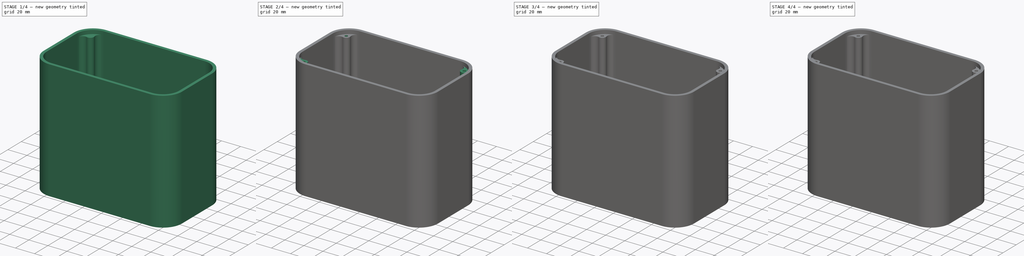
[diagram: build sequence overview — one tinted view per stage of 4, left to right]
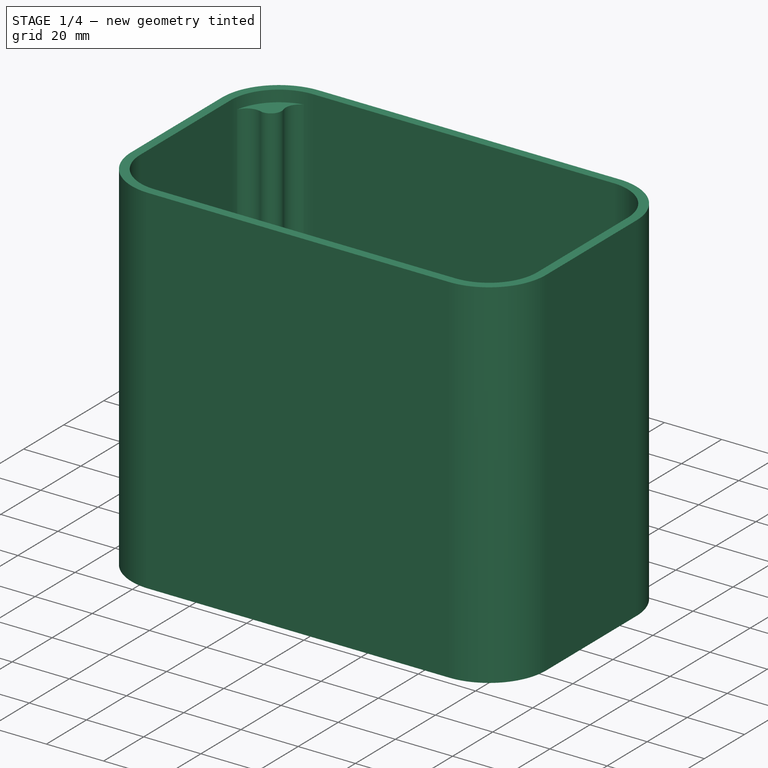
[diagram: stage 1 of 4 — iso view after this stage's code; geometry added in this stage tinted green]
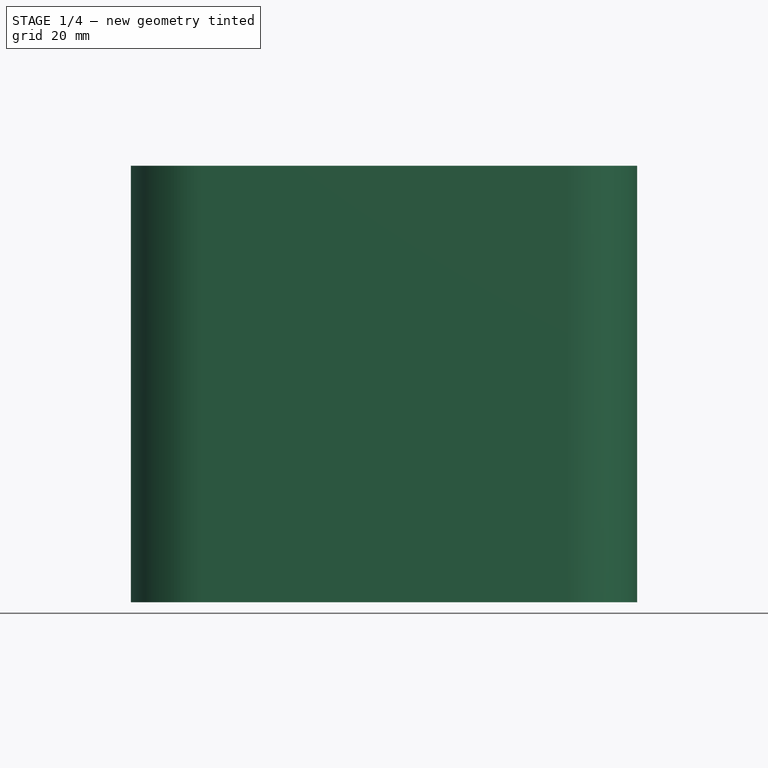
[diagram: stage 1 of 4 — front view after this stage's code; geometry added in this stage tinted green]
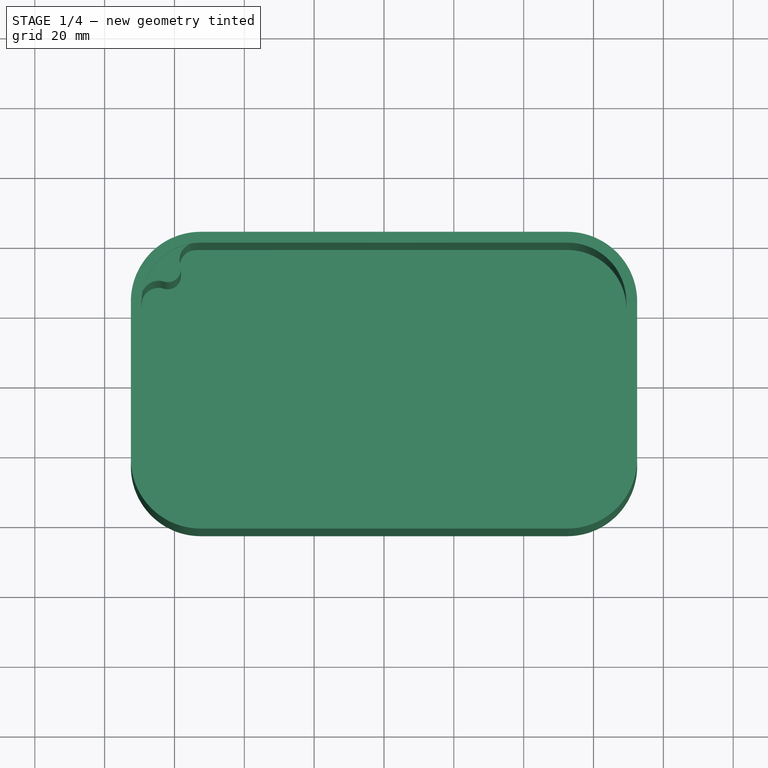
[diagram: stage 1 of 4 — top view after this stage's code; geometry added in this stage tinted green]
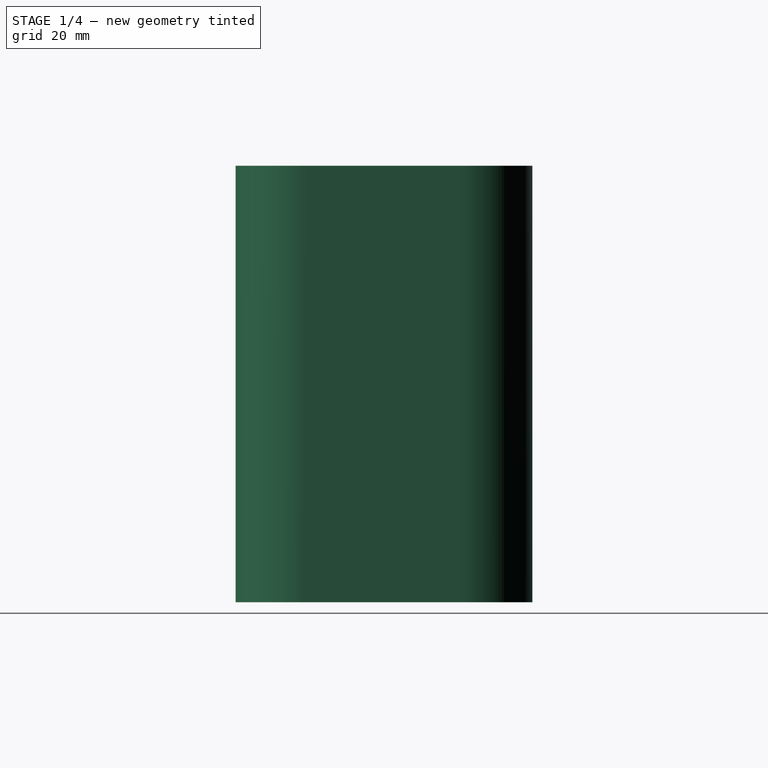
[diagram: stage 1 of 4 — right view after this stage's code; geometry added in this stage tinted green]
FCSTD DOCUMENT  (FreeCAD 0.19R23756 (Git))
Label: PID Case Improved
License: All rights reserved
LicenseURL: http://en.wikipedia.org/wiki/All_rights_reserved
objects: Sketcher::SketchObject×10, PartDesign::Pocket×6, PartDesign::Pad×4, PartDesign::Mirrored×2, Spreadsheet::Sheet×1, PartDesign::MultiTransform×1, PartDesign::Body×1
note: 34 computed .brp shape members not serialized (recipe doc carries the construction recipe); baked Part::Feature solids carry a one-line shape summary decoded from their .brp

FEATURE [Spreadsheet::Sheet] Spreadsheet  label="parameters"
  cells = A1=Common; B2=width; C2(width)=145; B3=height; C3(height)=85; B4=length; C4(length)=125; B5=outside_radius; C5(outside_radius)=20; B6=screw_size; C6(screw_size)=3; A8=Case; B9=wall_thick; C9(wall_thick)=3.1; B10=face_thick; C10(face_thick)=4; B11=inside_radius; C11(inside_radius)==C5 - C9; D11=Calculated; B12=inside_width; C12(inside_width)==C2 - 2 * C9; D12=Calculated; B13=inside_height; C13(inside_height)==C3 - 2 * C9; D13=Calculated; B14=inside_length; C14(inside_length)==C4 - C10 - C42; D14=Calculated; B15=hole_diameter; C15(hole_diameter)=3; B16=lug_diameter; C16(lug_diameter)==C15 + 2.25 * 2; D16=Calculated; A18=Case Features; B19=sw_pos_width; C19(sw_pos_width)=44; B20=sw_pos_height; C20(sw_pos_height)=18; B21=switch clearance; C21=0.2; B22=sw_diameter; C22(sw_diameter)==12 + C21; D22=Calculated; B24=therm_pos_width; C24(therm_pos_width)=38; B25=therm_pos_height; C25(therm_pos_height)=18; B26=therm clearance; C26=0.2; B27=therm_width; C27(therm_width)==17.3 + C26; D27=Calculated; B28=therm_height; C28(therm_height)==8.199999999999999 + C26; D28=Calculated; B29=therm_flange; C29(therm_flange)=2; B30=therm_depth; C30(therm_depth)=5; B31=therm_hole_size; C31(therm_hole_size)==2 + C26; D31=Calculated; B32=therm_hole_offset; C32=8; D32=???; B34=pid clearance; C34=0.2; B35=pid_body_width; C35(pid_body_width)==45 + C34; D35=Calculated; B36=pid_body_height; C36(pid_body_height)==45 + C34; D36=Calculated; B37=pid_flange_width; C37(pid_flange_width)==48.2 + C34; D37=Calculated; B38=pid_flange_height; C38(pid_flange_height)==48 + C34; D38=Calculated; B39=pid_flange_depth; C39(pid_flange_depth)=8; A41=Cover; B42=cover_thick; C42(cover_thick)=4; A44=Rear Features
FEATURE [Sketcher::SketchObject] Sketch  label="Face"
  FullyConstrained = true
  MapMode = 5
  Support = -> [XY_Plane001]
  expr: Constraints[12] = <<parameters>>.outside_radius
  expr: Constraints[17] = <<parameters>>.height
  expr: Constraints[18] = <<parameters>>.width
  sketch-geometry (8):
    g0: LineSegment StartX=-52.5 StartY=42.5 StartZ=0 EndX=52.5 EndY=42.5 EndZ=0
    g1: LineSegment StartX=72.5 StartY=22.5 StartZ=0 EndX=72.5 EndY=-22.5 EndZ=0
    g2: LineSegment StartX=52.5 StartY=-42.5 StartZ=0 EndX=-52.5 EndY=-42.5 EndZ=0
    g3: LineSegment StartX=-72.5 StartY=-22.5 StartZ=0 EndX=-72.5 EndY=22.5 EndZ=0
    g4: ArcOfCircle CenterX=-52.5 CenterY=22.5 CenterZ=0 NormalX=0 NormalY=0 NormalZ=1 AngleXU=0 Radius=20 StartAngle=1.5708 EndAngle=3.14159
    g5: ArcOfCircle CenterX=-52.5 CenterY=-22.5 CenterZ=0 NormalX=0 NormalY=0 NormalZ=1 AngleXU=0 Radius=20 StartAngle=3.14159 EndAngle=4.71239
    g6: ArcOfCircle CenterX=52.5 CenterY=-22.5 CenterZ=0 NormalX=0 NormalY=0 NormalZ=1 AngleXU=0 Radius=20 StartAngle=4.71239 EndAngle=6.28319
    g7: ArcOfCircle CenterX=52.5 CenterY=22.5 CenterZ=0 NormalX=0 NormalY=0 NormalZ=1 AngleXU=0 Radius=20 StartAngle=0 EndAngle=1.5708
  constraints (19):
    c: Horizontal(g0)
    c: Horizontal(g2)
    c: Vertical(g1)
    c: Vertical(g3)
    c: Tangent(g0,g4) = 1.5708
    c: Tangent(g3,g4) = 1.5708
    c: Tangent(g3,g5) = 1.5708
    c: Tangent(g2,g5) = 1.5708
    c: Tangent(g2,g6) = 1.5708
    c: Tangent(g1,g6) = 1.5708
    c: Tangent(g0,g7) = 1.5708
    c: Tangent(g1,g7) = 1.5708
    c: Radius(g4) = 20
    c: Symmetric(g4,g6,g-1)
    c: Equal(g7,g4)
    c: Equal(g4,g5)
    c: Equal(g5,g6)
    c: DistanceY(g2,g0) = 85
    c: DistanceX(g3,g1) = 145
FEATURE [PartDesign::Pad] Pad
  Direction = (1,1,1)
  Length = 125
  Length2 = 100
  Profile = -> Sketch
  Type = 0
  expr: Length = <<parameters>>.length
FEATURE [Sketcher::SketchObject] Sketch001  label="Cavity"
  AttachmentOffset = pos=(0,0,4) rot=(0,0,1;0rad)
  FullyConstrained = true
  MapMode = 5
  Placement = pos=(0,0,4) rot=(0,0,1;0rad)
  Support = -> [XY_Plane001]
  expr: Constraints[15] = <<parameters>>.inside_radius
  expr: Constraints[16] = <<parameters>>.inside_height
  expr: Constraints[17] = <<parameters>>.inside_width
  expr: .AttachmentOffset.Base.z = <<parameters>>.face_thick
  sketch-geometry (8):
    g0: LineSegment StartX=-52.5 StartY=39.4 StartZ=0 EndX=52.5 EndY=39.4 EndZ=0
    g1: LineSegment StartX=69.4 StartY=22.5 StartZ=0 EndX=69.4 EndY=-22.5 EndZ=0
    g2: LineSegment StartX=52.5 StartY=-39.4 StartZ=0 EndX=-52.5 EndY=-39.4 EndZ=0
    g3: LineSegment StartX=-69.4 StartY=-22.5 StartZ=0 EndX=-69.4 EndY=22.5 EndZ=0
    g4: ArcOfCircle CenterX=-52.5 CenterY=22.5 CenterZ=0 NormalX=0 NormalY=0 NormalZ=1 AngleXU=0 Radius=16.9 StartAngle=1.5708 EndAngle=3.14159
    g5: ArcOfCircle CenterX=52.5 CenterY=22.5 CenterZ=0 NormalX=0 NormalY=0 NormalZ=1 AngleXU=0 Radius=16.9 StartAngle=-1.8e-15 EndAngle=1.5708
    g6: ArcOfCircle CenterX=52.5 CenterY=-22.5 CenterZ=0 NormalX=0 NormalY=0 NormalZ=1 AngleXU=0 Radius=16.9 StartAngle=4.71239 EndAngle=6.28319
    g7: ArcOfCircle CenterX=-52.5 CenterY=-22.5 CenterZ=0 NormalX=0 NormalY=0 NormalZ=1 AngleXU=0 Radius=16.9 StartAngle=3.14159 EndAngle=4.71239
  constraints (19):
    c: Horizontal(g0)
    c: Horizontal(g2)
    c: Vertical(g1)
    c: Vertical(g3)
    c: Tangent(g3,g4) = 1.5708
    c: Tangent(g0,g4) = 1.5708
    c: Tangent(g0,g5) = 1.5708
    c: Tangent(g1,g5) = 1.5708
    c: Tangent(g1,g6) = 1.5708
    c: Tangent(g2,g6) = 1.5708
    c: Tangent(g3,g7) = 1.5708
    c: Tangent(g2,g7) = 1.5708
    c: Equal(g4,g5)
    c: Equal(g5,g6)
    c: Equal(g6,g7)
    c: Radius(g4) = 16.9
    c: DistanceY(g2,g0) = 78.8
    c: DistanceX(g3,g1) = 138.8
    c: Symmetric(g4,g6,g-1)
FEATURE [PartDesign::Pocket] Pocket
  BaseFeature = -> Pad
  Length = 117
  Length2 = 100
  Profile = -> Sketch001
  Reversed = true
  Type = 1
  expr: Length = <<parameters>>.inside_length
FEATURE [Sketcher::SketchObject] Sketch002  label="Lug"
  AttachmentOffset = pos=(0,0,4) rot=(0,0,1;0rad)
  FullyConstrained = true
  MapMode = 5
  Placement = pos=(0,0,4) rot=(0,0,1;0rad)
  Support = -> [XY_Plane001]
  expr: .AttachmentOffset.Base.z = <<parameters>>.face_thick
  expr: Constraints[7] = <<parameters>>.inside_width / 2 - <<parameters>>.inside_radius
  expr: Constraints[6] = <<parameters>>.inside_width / 2
  expr: Constraints[4] = <<parameters>>.inside_height / 2 - <<parameters>>.inside_radius
  expr: Constraints[3] = <<parameters>>.inside_radius
  expr: Constraints[5] = <<parameters>>.inside_height / 2
  expr: Constraints[2] = <<parameters>>.inside_width / 2 - <<parameters>>.lug_diameter
  expr: Constraints[1] = <<parameters>>.inside_height / 2 - <<parameters>>.lug_diameter
  expr: Constraints[0] = <<parameters>>.lug_diameter
  sketch-geometry (4):
    g0: ArcOfCircle CenterX=-61.9 CenterY=31.9 CenterZ=0 NormalX=0 NormalY=0 NormalZ=1 AngleXU=0 Radius=3.75 StartAngle=4.40935 EndAngle=6.58623
    g1: ArcOfCircle CenterX=-52.5 CenterY=22.5 CenterZ=0 NormalX=0 NormalY=0 NormalZ=1 AngleXU=0 Radius=16.9 StartAngle=1.5708 EndAngle=3.14159
    g2: ArcOfCircle CenterX=-64.5112 CenterY=23.5487 CenterZ=0 NormalX=0 NormalY=0 NormalZ=1 AngleXU=0 Radius=5 StartAngle=1.26775 EndAngle=3.3529
    g3: ArcOfCircle CenterX=-53.5487 CenterY=34.5112 CenterZ=0 NormalX=0 NormalY=0 NormalZ=1 AngleXU=0 Radius=5 StartAngle=1.35949 EndAngle=3.44463
  constraints (14):
    c: Diameter(g0) = 7.5
    c: DistanceY(g-1,g0) = 31.9
    c: DistanceX(g0,g-1) = 61.9
    c: Radius(g1) = 16.9
    c: DistanceY(g-1,g1) = 22.5
    c: DistanceY(g-1,g1) = 39.4
    c: DistanceX(g1,g-1) = 69.4
    c: DistanceX(g1,g-1) = 52.5
    c: Coincident(g2,g1)
    c: Coincident(g3,g1)
    c: Radius(g3) = 5
    c: Radius(g2) = 5
    c: Tangent(g0,g2) = 1.5708
    c: Tangent(g0,g3) = 1.5708
FEATURE [PartDesign::Pad] Pad001
  BaseFeature = -> Pocket
  Direction = (1,1,1)
  Length = 117
  Length2 = 100
  Profile = -> Sketch002
  Type = 0
  expr: Length = <<parameters>>.inside_length
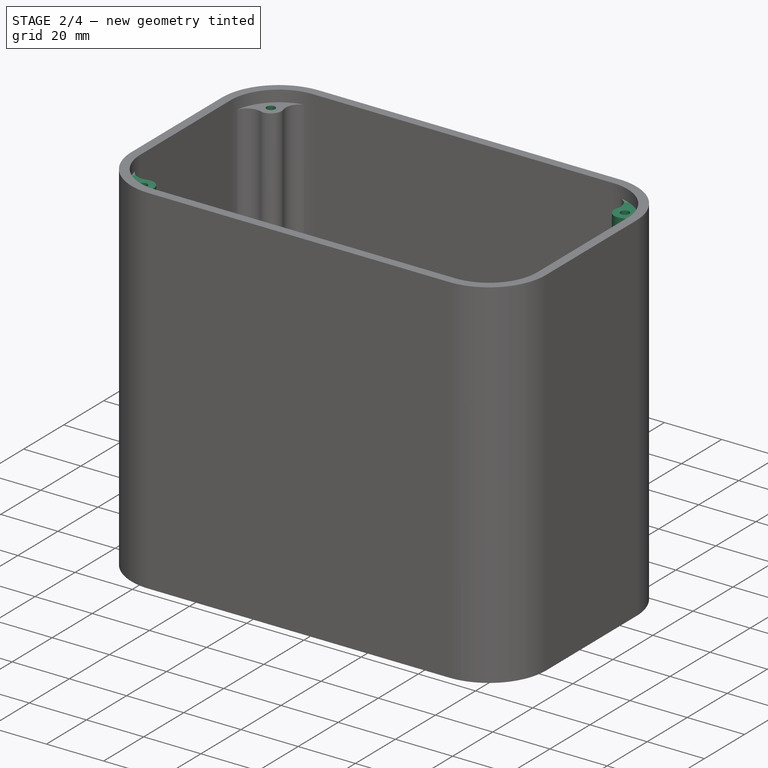
[diagram: stage 2 of 4 — iso view after this stage's code; geometry added in this stage tinted green]
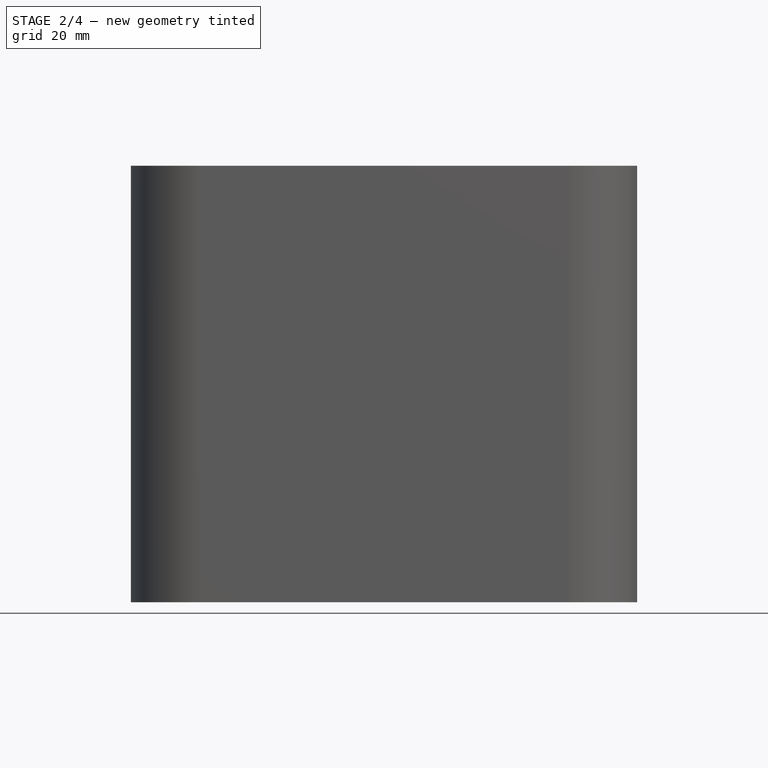
[diagram: stage 2 of 4 — front view after this stage's code; geometry added in this stage tinted green]
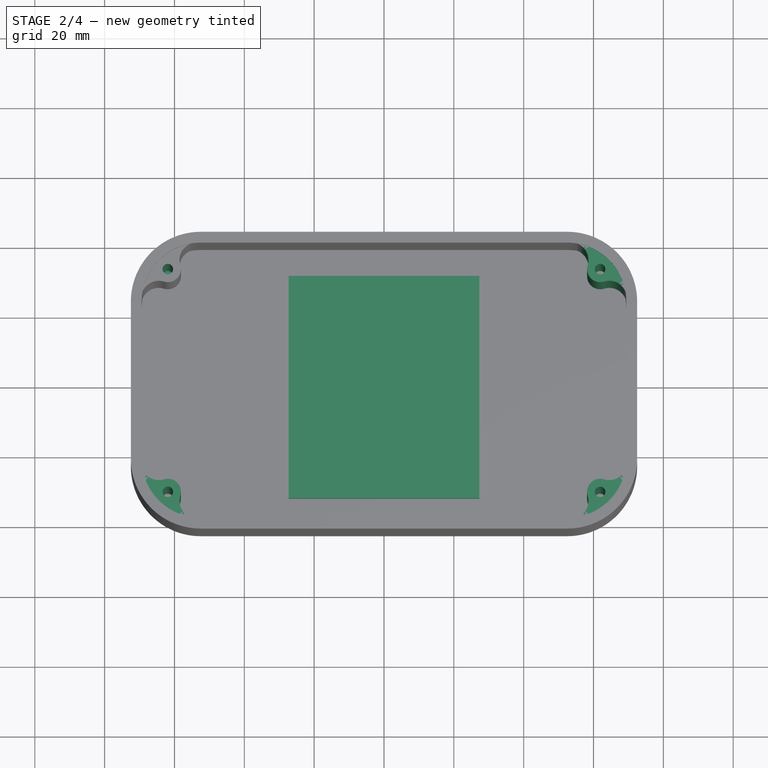
[diagram: stage 2 of 4 — top view after this stage's code; geometry added in this stage tinted green]
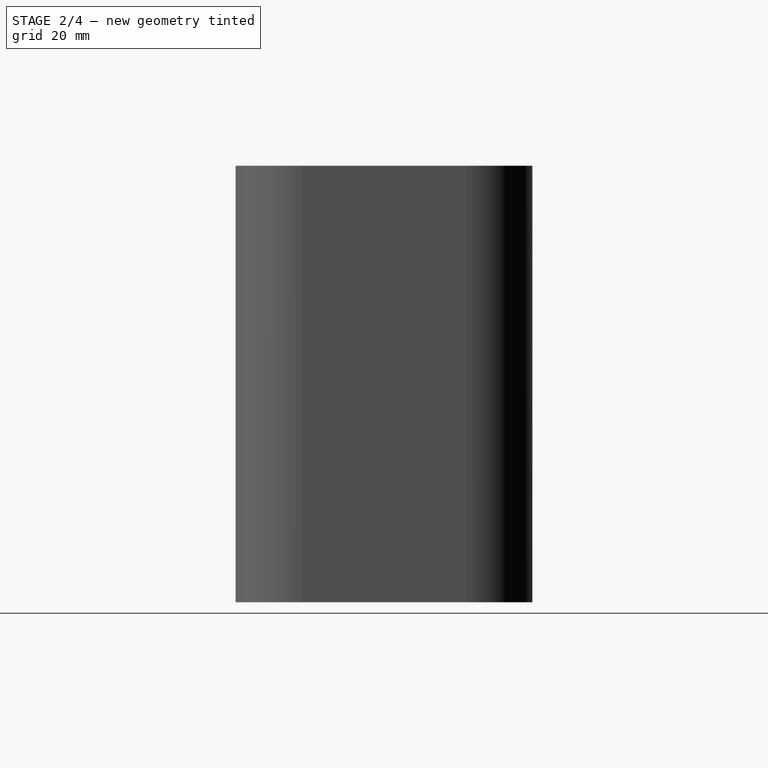
[diagram: stage 2 of 4 — right view after this stage's code; geometry added in this stage tinted green]
FEATURE [Sketcher::SketchObject] Sketch003  label="Lug Hole"
  AttachmentOffset = pos=(0,0,4) rot=(0,0,1;0rad)
  FullyConstrained = true
  MapMode = 5
  Placement = pos=(0,0,4) rot=(0,0,1;0rad)
  Support = -> [XY_Plane001]
  expr: .AttachmentOffset.Base.z = <<parameters>>.face_thick
  expr: Constraints[0] = <<parameters>>.hole_diameter
  expr: Constraints[2] = <<parameters>>.inside_height / 2 - <<parameters>>.lug_diameter
  expr: Constraints[1] = <<parameters>>.inside_width / 2 - <<parameters>>.lug_diameter
  sketch-geometry (1):
    g0: Circle CenterX=-61.9 CenterY=31.9 CenterZ=0 NormalX=0 NormalY=0 NormalZ=1 AngleXU=0 Radius=1.5
  constraints (3):
    c: Diameter(g0) = 3
    c: DistanceX(g0,g-1) = 61.9
    c: DistanceY(g-1,g0) = 31.9
FEATURE [PartDesign::Pocket] Pocket001
  BaseFeature = -> Pad001
  Length = 117
  Length2 = 100
  Profile = -> Sketch003
  Reversed = true
  Type = 0
  expr: Length = <<parameters>>.inside_length
FEATURE [PartDesign::Mirrored] Mirrored
  MirrorPlane = -> Sketch002 [V_Axis]
FEATURE [PartDesign::Mirrored] Mirrored001
  MirrorPlane = -> Sketch002 [H_Axis]
FEATURE [PartDesign::MultiTransform] MultiTransform
  BaseFeature = -> Pocket001
  Originals = -> [Pad001,Pocket001]
  Transformations = -> [Mirrored,Mirrored001]
FEATURE [Sketcher::SketchObject] Sketch004
  FullyConstrained = true
  expr: Constraints[10] = <<parameters>>.pid_flange_height + <<parameters>>.wall_thick * 5
  expr: Constraints[9] = <<parameters>>.pid_flange_width + <<parameters>>.wall_thick * 2
  sketch-geometry (4):
    g0: LineSegment StartX=-27.3 StartY=31.85 StartZ=0 EndX=27.3 EndY=31.85 EndZ=0
    g1: LineSegment StartX=27.3 StartY=31.85 StartZ=0 EndX=27.3 EndY=-31.85 EndZ=0
    g2: LineSegment StartX=27.3 StartY=-31.85 StartZ=0 EndX=-27.3 EndY=-31.85 EndZ=0
    g3: LineSegment StartX=-27.3 StartY=-31.85 StartZ=0 EndX=-27.3 EndY=31.85 EndZ=0
  constraints (11):
    c: Coincident(g0,g1)
    c: Coincident(g1,g2)
    c: Coincident(g2,g3)
    c: Coincident(g3,g0)
    c: Horizontal(g0)
    c: Horizontal(g2)
    c: Vertical(g1)
    c: Vertical(g3)
    c: Symmetric(g0,g1,g-1)
    c: DistanceX(g0,g0) = 54.6
    c: DistanceY(g1,g1) = 63.7
FEATURE [PartDesign::Pad] Pad002
  BaseFeature = -> MultiTransform
  Direction = (1,1,1)
  Length = 12
  Length2 = 100
  Profile = -> Sketch004
  Type = 0
  expr: Length = <<parameters>>.pid_flange_depth + <<parameters>>.face_thick
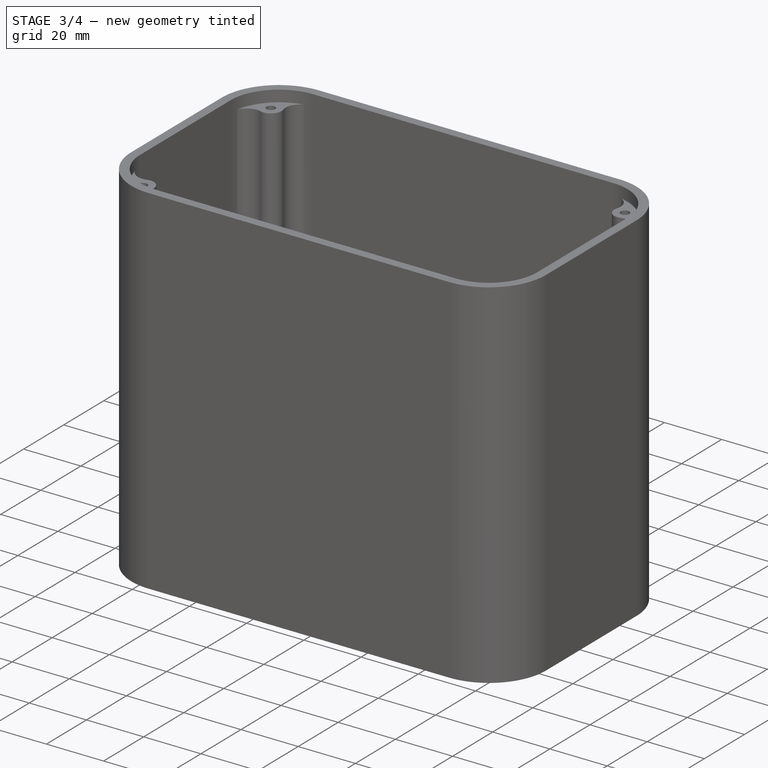
[diagram: stage 3 of 4 — iso view after this stage's code; geometry added in this stage tinted green]
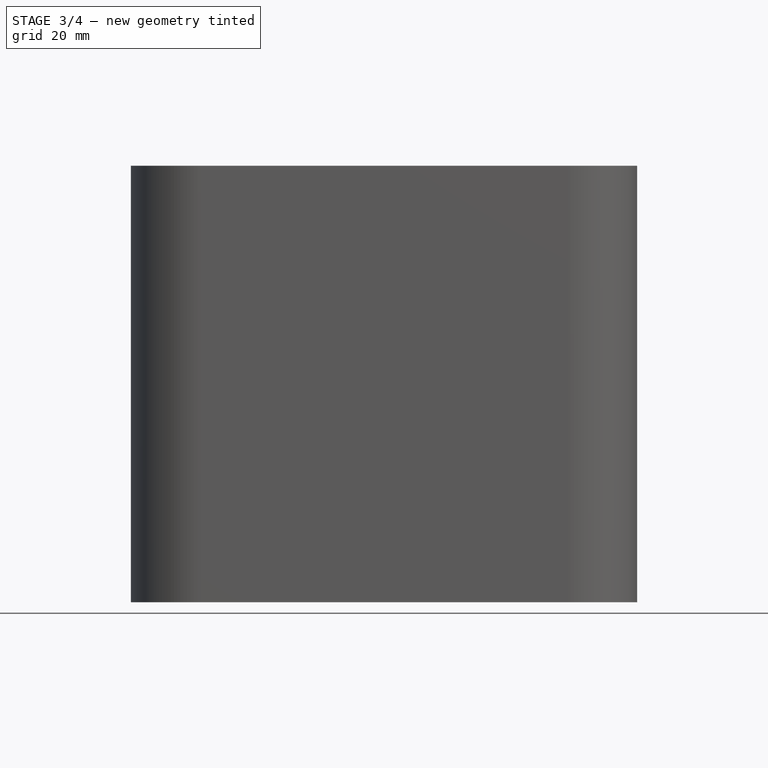
[diagram: stage 3 of 4 — front view after this stage's code; geometry added in this stage tinted green]
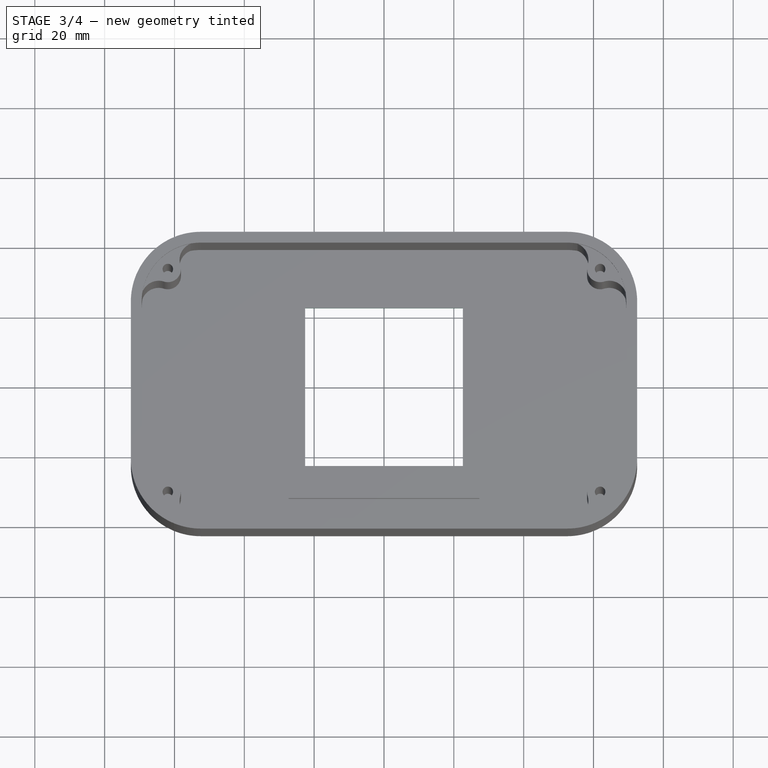
[diagram: stage 3 of 4 — top view after this stage's code; geometry added in this stage tinted green]
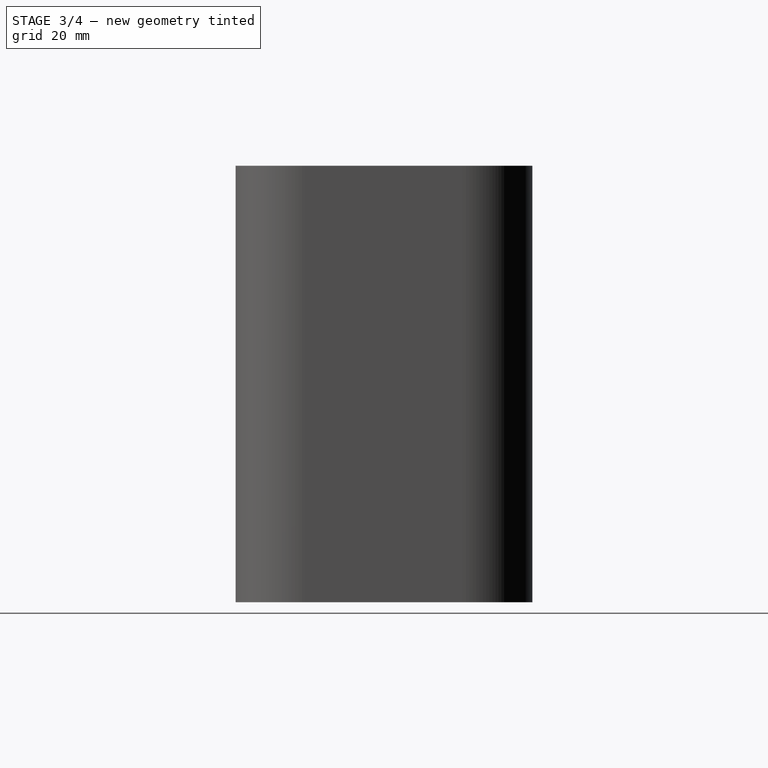
[diagram: stage 3 of 4 — right view after this stage's code; geometry added in this stage tinted green]
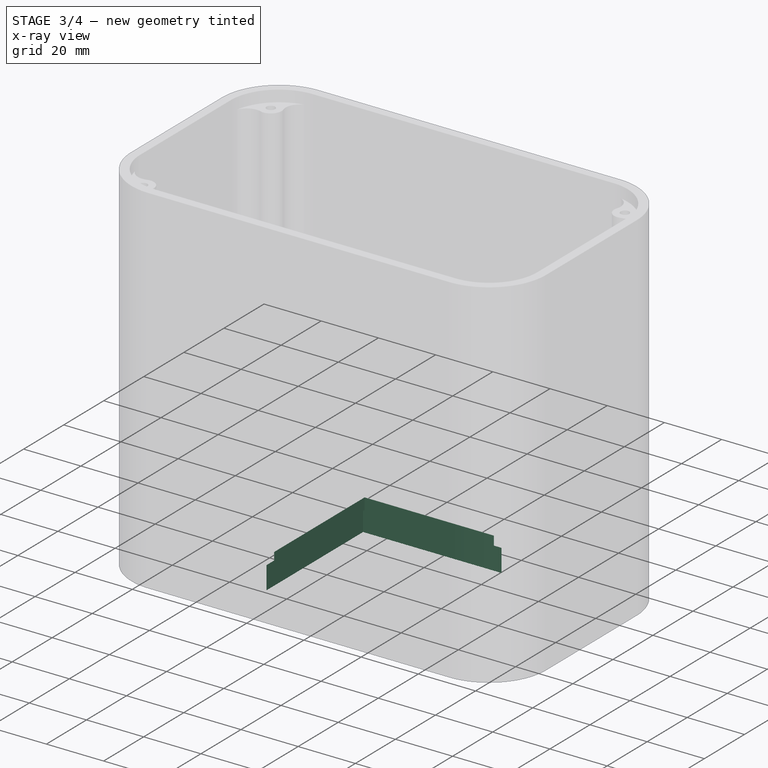
[diagram: stage 3 of 4 — x-ray composite at the iso view; earlier geometry ghosted, this stage's added geometry solid]
FEATURE [Sketcher::SketchObject] Sketch005
  FullyConstrained = true
  MapMode = 5
  Support = -> [XY_Plane001]
  expr: Constraints[10] = <<parameters>>.pid_body_width
  expr: Constraints[9] = <<parameters>>.pid_body_height
  sketch-geometry (4):
    g0: LineSegment StartX=-22.6 StartY=22.6 StartZ=0 EndX=22.6 EndY=22.6 EndZ=0
    g1: LineSegment StartX=22.6 StartY=22.6 StartZ=0 EndX=22.6 EndY=-22.6 EndZ=0
    g2: LineSegment StartX=22.6 StartY=-22.6 StartZ=0 EndX=-22.6 EndY=-22.6 EndZ=0
    g3: LineSegment StartX=-22.6 StartY=-22.6 StartZ=0 EndX=-22.6 EndY=22.6 EndZ=0
  constraints (11):
    c: Coincident(g0,g1)
    c: Coincident(g1,g2)
    c: Coincident(g2,g3)
    c: Coincident(g3,g0)
    c: Horizontal(g0)
    c: Horizontal(g2)
    c: Vertical(g1)
    c: Vertical(g3)
    c: Symmetric(g0,g1,g-1)
    c: DistanceY(g1,g1) = 45.2
    c: DistanceX(g0,g0) = 45.2
FEATURE [PartDesign::Pocket] Pocket002
  BaseFeature = -> Pad002
  Length = 5
  Length2 = 100
  Profile = -> Sketch005
  Reversed = true
  Type = 1
FEATURE [Sketcher::SketchObject] Sketch006
  FullyConstrained = true
  MapMode = 5
  Support = -> [XY_Plane001]
  expr: Constraints[10] = <<parameters>>.pid_flange_width
  expr: Constraints[9] = <<parameters>>.pid_flange_height
  sketch-geometry (4):
    g0: LineSegment StartX=-24.2 StartY=24.1 StartZ=0 EndX=24.2 EndY=24.1 EndZ=0
    g1: LineSegment StartX=24.2 StartY=24.1 StartZ=0 EndX=24.2 EndY=-24.1 EndZ=0
    g2: LineSegment StartX=24.2 StartY=-24.1 StartZ=0 EndX=-24.2 EndY=-24.1 EndZ=0
    g3: LineSegment StartX=-24.2 StartY=-24.1 StartZ=0 EndX=-24.2 EndY=24.1 EndZ=0
  constraints (11):
    c: Coincident(g0,g1)
    c: Coincident(g1,g2)
    c: Coincident(g2,g3)
    c: Coincident(g3,g0)
    c: Horizontal(g0)
    c: Horizontal(g2)
    c: Vertical(g1)
    c: Vertical(g3)
    c: Symmetric(g0,g1,g-1)
    c: DistanceY(g1,g1) = 48.2
    c: DistanceX(g0,g0) = 48.4
FEATURE [PartDesign::Pocket] Pocket003
  BaseFeature = -> Pocket002
  Length = 8
  Length2 = 100
  Profile = -> Sketch006
  Reversed = true
  Type = 0
  expr: Length = <<parameters>>.pid_flange_depth
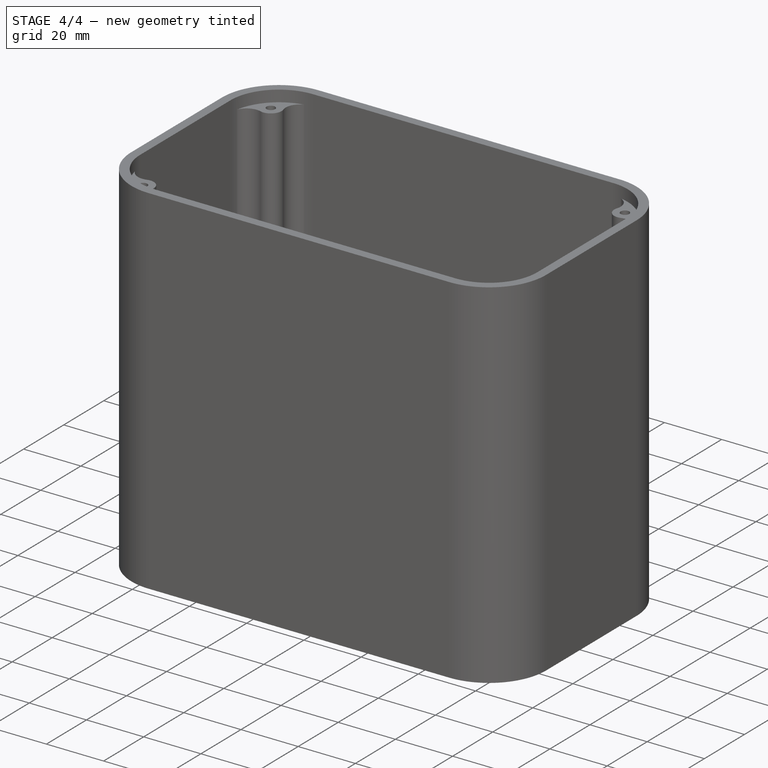
[diagram: stage 4 of 4 — iso view after this stage's code; geometry added in this stage tinted green]
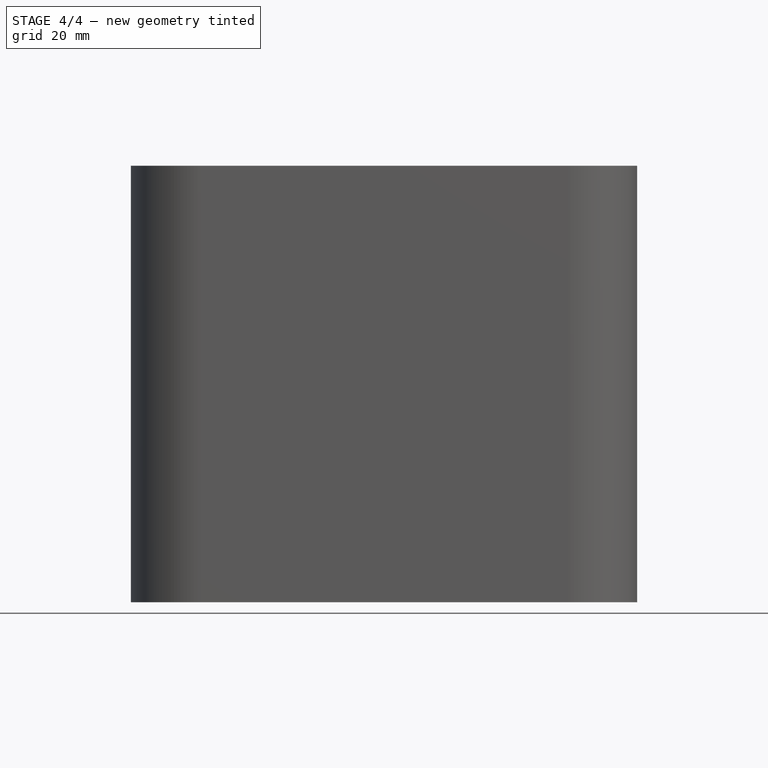
[diagram: stage 4 of 4 — front view after this stage's code; geometry added in this stage tinted green]
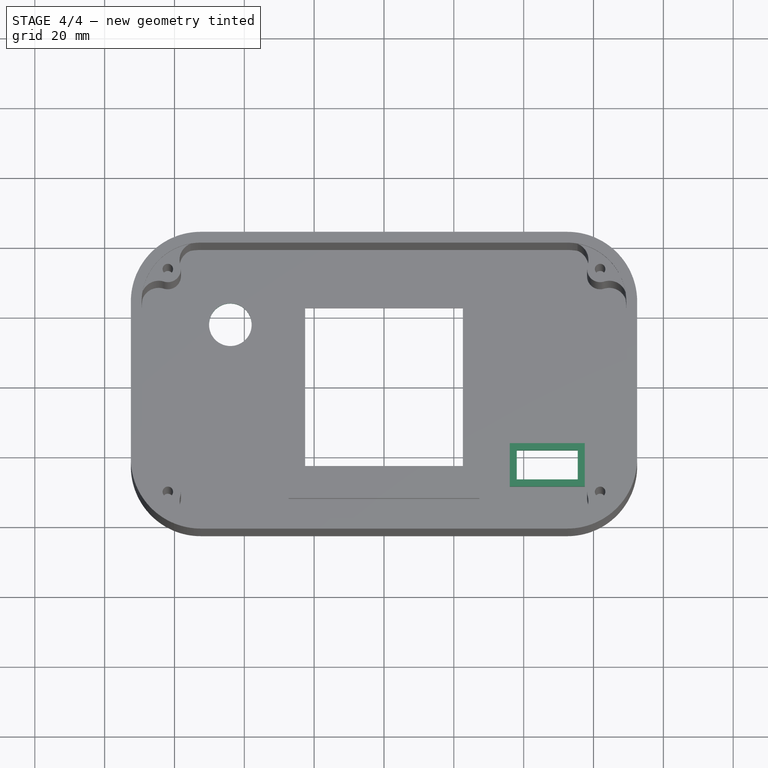
[diagram: stage 4 of 4 — top view after this stage's code; geometry added in this stage tinted green]
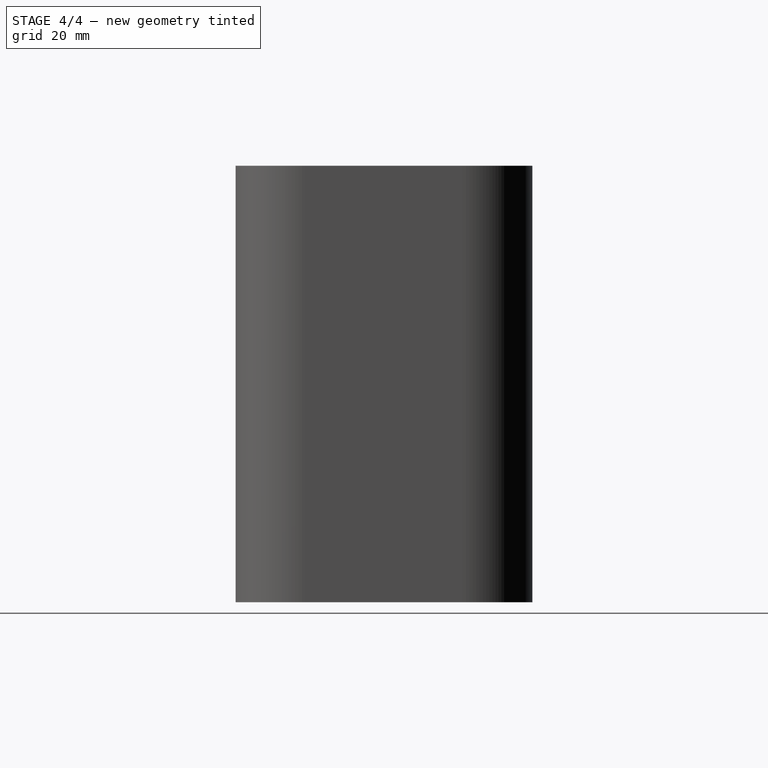
[diagram: stage 4 of 4 — right view after this stage's code; geometry added in this stage tinted green]
FEATURE [Sketcher::SketchObject] Sketch007  label="Switch"
  FullyConstrained = true
  MapMode = 5
  Support = -> [XY_Plane001]
  expr: Constraints[2] = <<parameters>>.sw_pos_width
  expr: Constraints[1] = <<parameters>>.sw_pos_height
  expr: Constraints[0] = <<parameters>>.sw_diameter
  sketch-geometry (1):
    g0: Circle CenterX=-44 CenterY=18 CenterZ=0 NormalX=0 NormalY=0 NormalZ=1 AngleXU=0 Radius=6.1
  constraints (3):
    c: Diameter(g0) = 12.2
    c: DistanceY(g-1,g0) = 18
    c: DistanceX(g0,g-1) = 44
FEATURE [PartDesign::Pocket] Pocket004
  BaseFeature = -> Pocket003
  Length = 5
  Length2 = 100
  Profile = -> Sketch007
  Reversed = true
  Type = 1
FEATURE [Sketcher::SketchObject] Sketch008
  FullyConstrained = true
  MapMode = 5
  Support = -> [XY_Plane001]
  expr: Constraints[11] = <<parameters>>.therm_pos_width
  expr: Constraints[10] = <<parameters>>.therm_pos_height
  expr: Constraints[9] = Spreadsheet.therm_height
  expr: Constraints[8] = Spreadsheet.therm_width
  sketch-geometry (4):
    g0: LineSegment StartX=38 StartY=-18 StartZ=0 EndX=55.5 EndY=-18 EndZ=0
    g1: LineSegment StartX=55.5 StartY=-18 StartZ=0 EndX=55.5 EndY=-26.4 EndZ=0
    g2: LineSegment StartX=55.5 StartY=-26.4 StartZ=0 EndX=38 EndY=-26.4 EndZ=0
    g3: LineSegment StartX=38 StartY=-26.4 StartZ=0 EndX=38 EndY=-18 EndZ=0
  constraints (12):
    c: Coincident(g0,g1)
    c: Coincident(g1,g2)
    c: Coincident(g2,g3)
    c: Coincident(g3,g0)
    c: Horizontal(g0)
    c: Horizontal(g2)
    c: Vertical(g1)
    c: Vertical(g3)
    c: DistanceX(g0,g0) = 17.5
    c: DistanceY(g1,g1) = 8.4
    c: DistanceY(g0,g-1) = 18
    c: DistanceX(g-1,g0) = 38
FEATURE [Sketcher::SketchObject] Sketch009
  FullyConstrained = true
  MapMode = 5
  Support = -> [XY_Plane001]
  expr: Constraints[11] = <<parameters>>.therm_pos_width - <<parameters>>.therm_flange
  expr: Constraints[10] = <<parameters>>.therm_pos_height - <<parameters>>.therm_flange
  expr: Constraints[9] = <<parameters>>.therm_height + <<parameters>>.therm_flange * 2
  expr: Constraints[8] = <<parameters>>.therm_width + <<parameters>>.therm_flange * 2
  sketch-geometry (4):
    g0: LineSegment StartX=36 StartY=-16 StartZ=0 EndX=57.5 EndY=-16 EndZ=0
    g1: LineSegment StartX=57.5 StartY=-16 StartZ=0 EndX=57.5 EndY=-28.4 EndZ=0
    g2: LineSegment StartX=57.5 StartY=-28.4 StartZ=0 EndX=36 EndY=-28.4 EndZ=0
    g3: LineSegment StartX=36 StartY=-28.4 StartZ=0 EndX=36 EndY=-16 EndZ=0
  constraints (12):
    c: Coincident(g0,g1)
    c: Coincident(g1,g2)
    c: Coincident(g2,g3)
    c: Coincident(g3,g0)
    c: Horizontal(g0)
    c: Horizontal(g2)
    c: Vertical(g1)
    c: Vertical(g3)
    c: DistanceX(g0,g0) = 21.5
    c: DistanceY(g1,g1) = 12.4
    c: DistanceY(g0,g-1) = 16
    c: DistanceX(g-1,g0) = 36
FEATURE [PartDesign::Pad] Pad003
  BaseFeature = -> Pocket004
  Direction = (1,1,1)
  Length = 9
  Length2 = 100
  Profile = -> Sketch009
  Type = 0
  expr: Length = <<parameters>>.face_thick + <<parameters>>.therm_depth
FEATURE [PartDesign::Pocket] Pocket005
  BaseFeature = -> Pad003
  Length = 5
  Length2 = 100
  Profile = -> Sketch008
  Reversed = true
  Type = 1
FEATURE [PartDesign::Body] Body  label="Case"
  Group = -> [Sketch,Pad,Sketch001,Pocket,Sketch002,Pad001,Sketch003,Pocket001,MultiTransform,Mirrored,Mirrored001,Pad002,Sketch005,Pocket002,Sketch006,Pocket003,Sketch007,Pocket004,Sketch008,Sketch009,Pad003,Pocket005]
  Origin = -> Origin001
  Tip = -> Pocket005
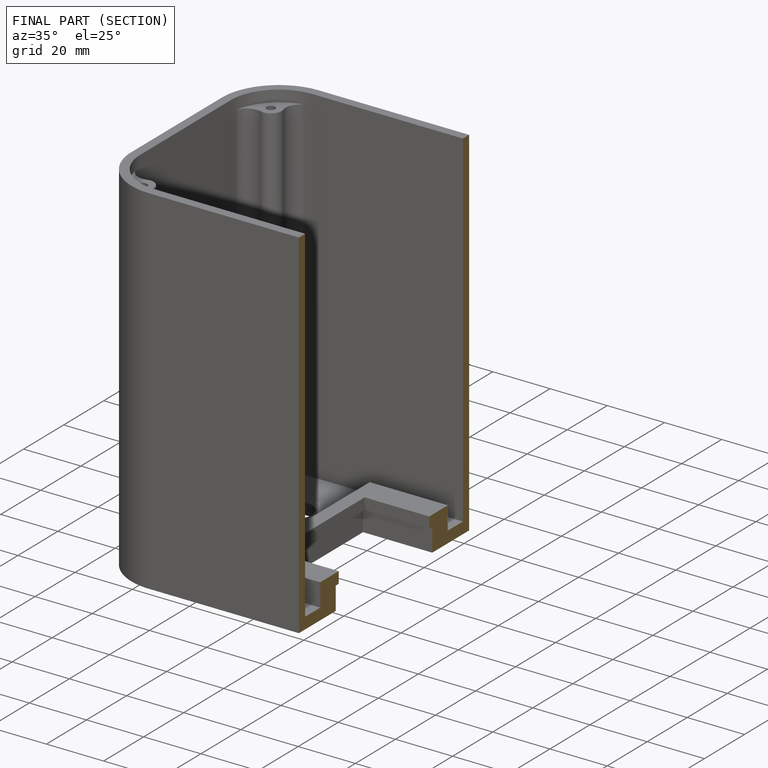
[diagram: finished part — half-section view (interior)]
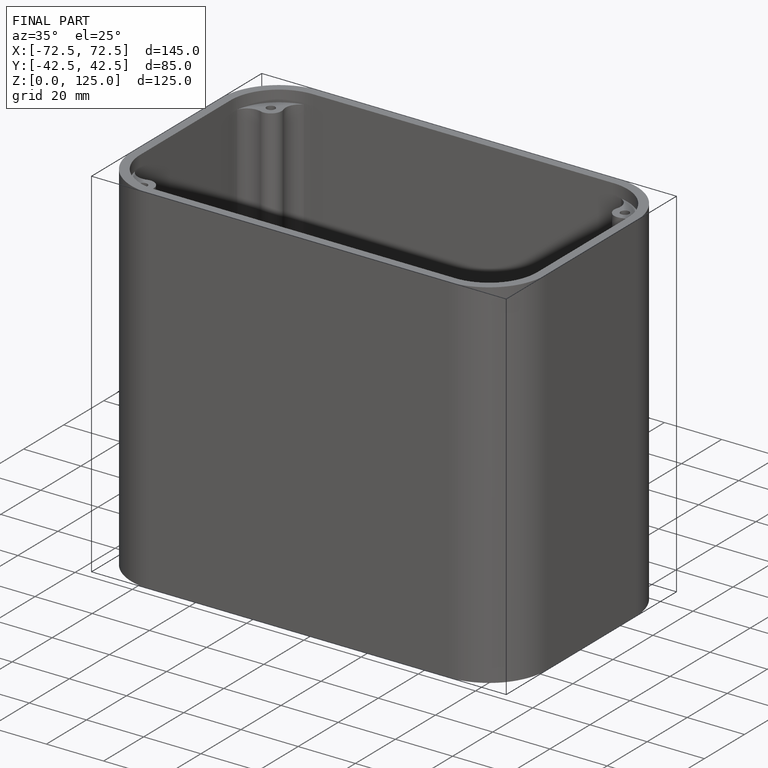
[diagram: finished part — iso view with bounding-box wireframe]
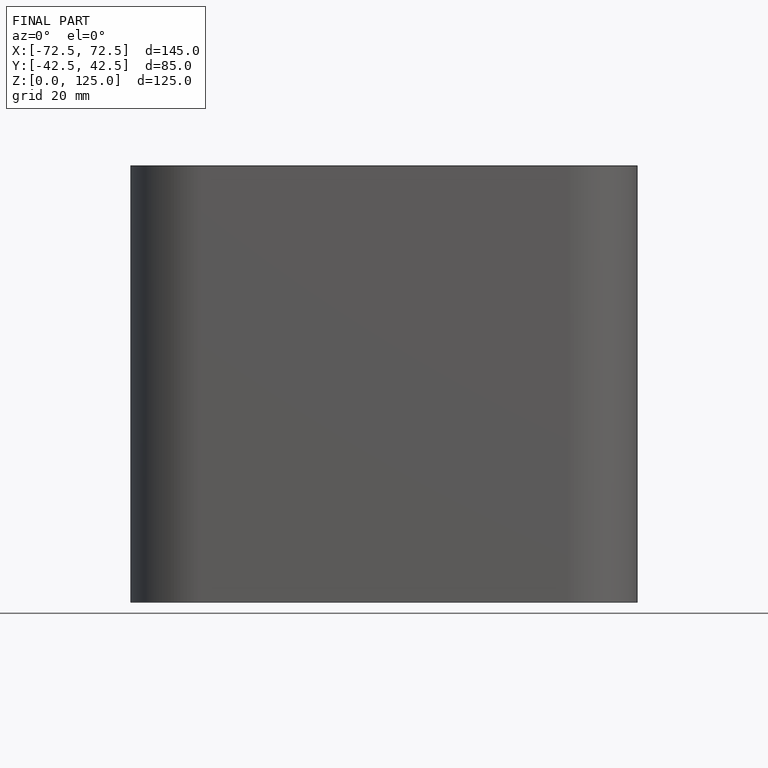
[diagram: finished part — front view with bounding-box wireframe]
